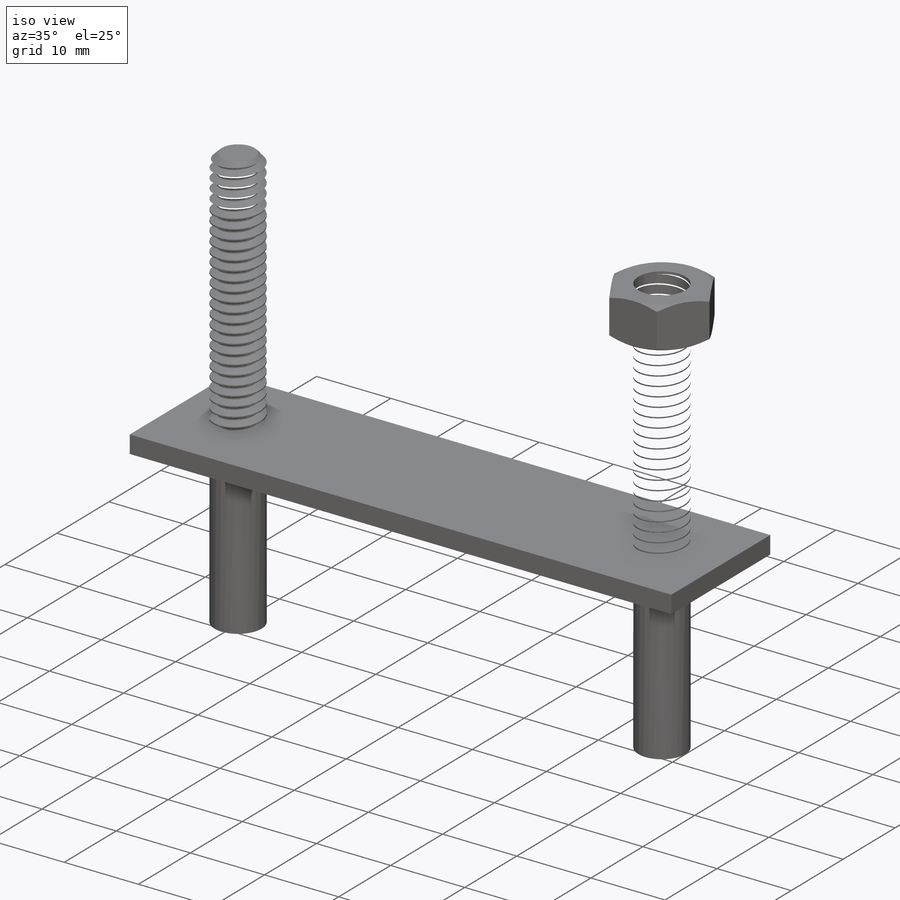
[diagram: iso view]
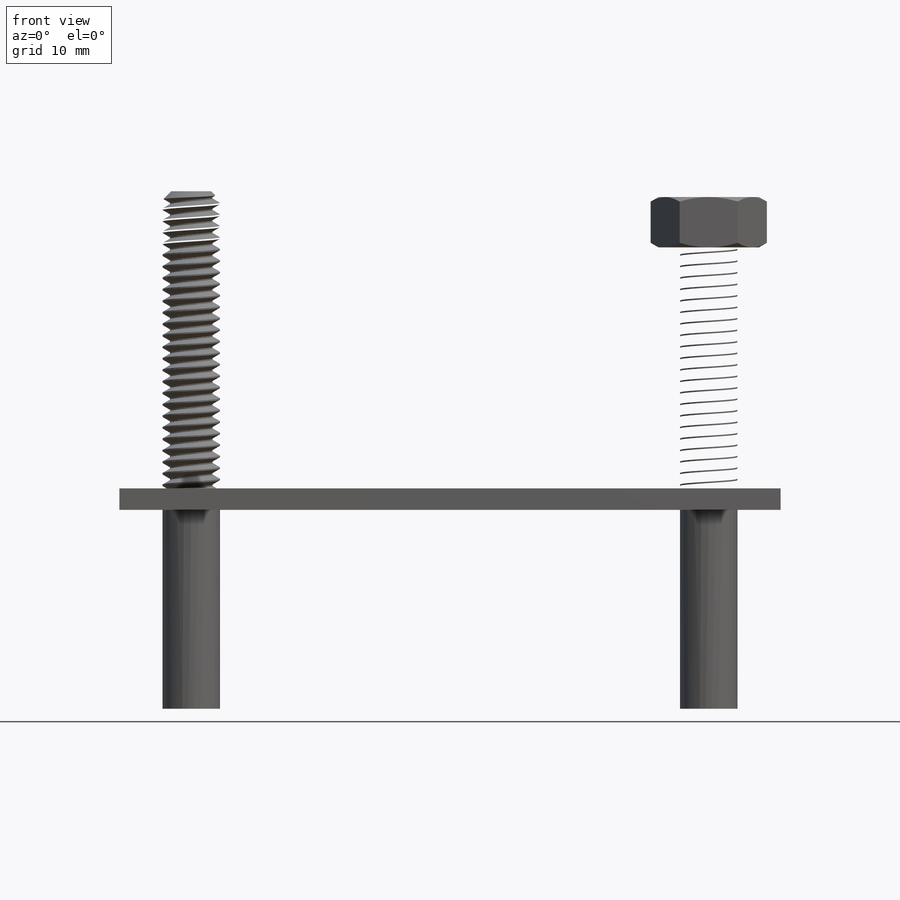
[diagram: front view]
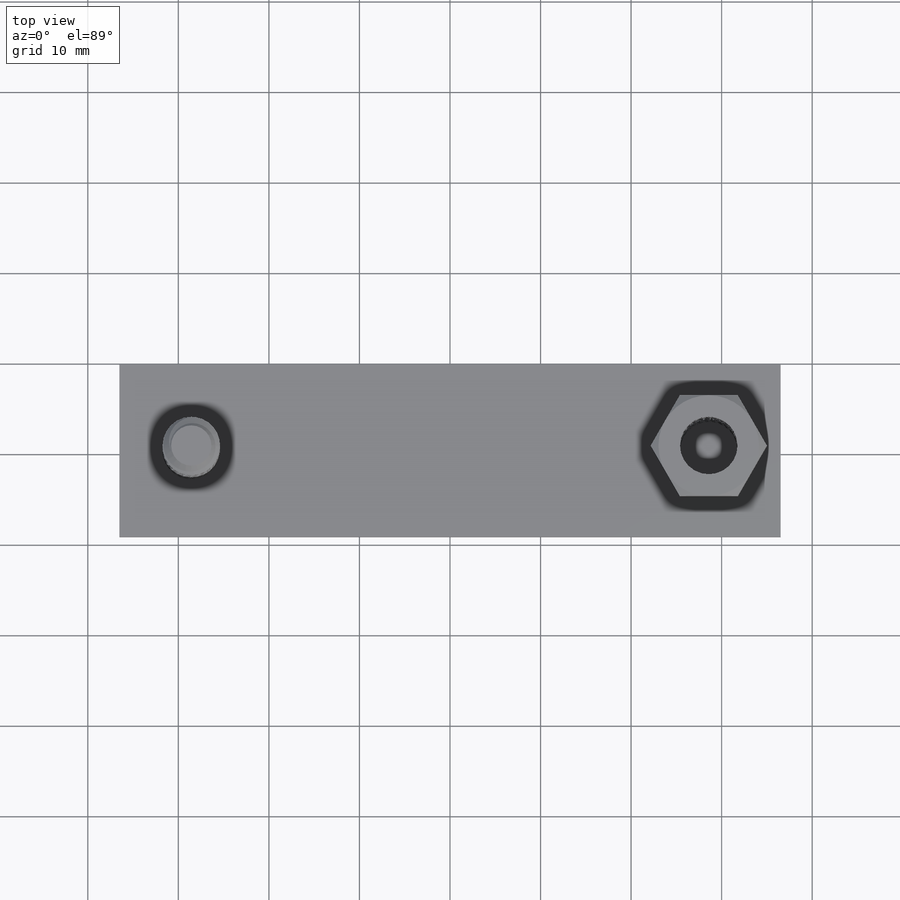
[diagram: top view]
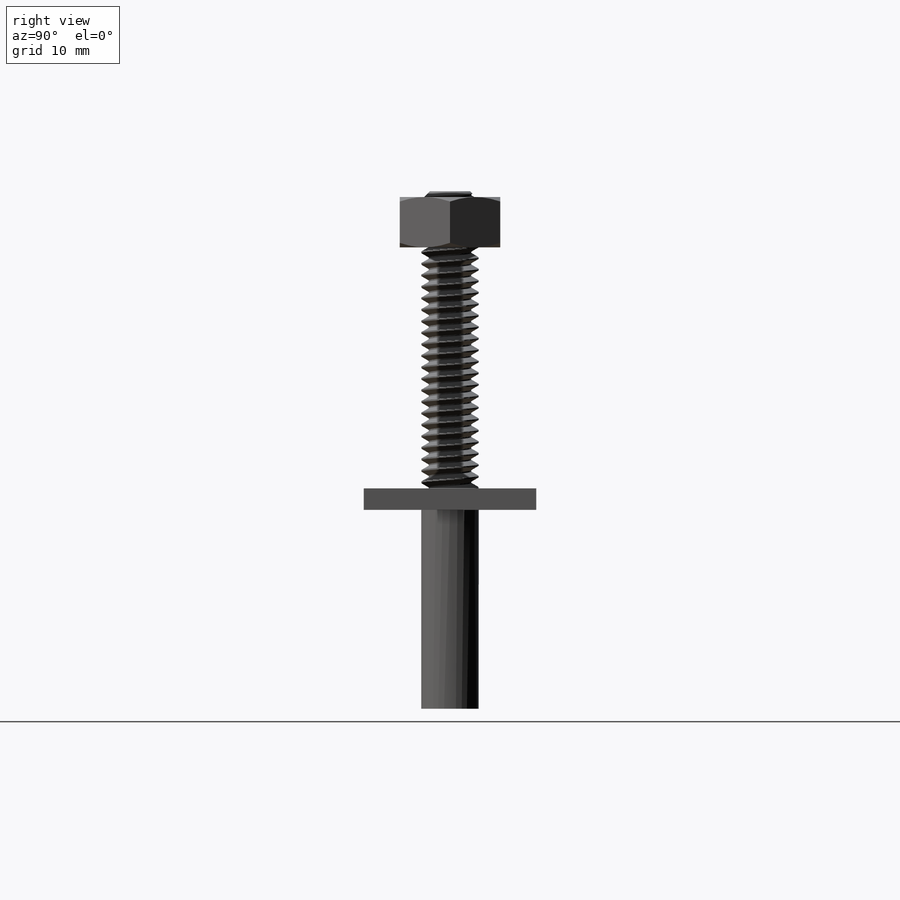
[diagram: right view]
SOLIDWORKS PART (.sldprt)
format: sldprt  version: not decoded by parser v0  size: 1,707,520 bytes
history: native  units: mm
features: sketch x10, move_body x6, plane x3, extrude x3, boolean_combine x3, sweep x2, cut_extrude x2, material x1, helix x1, chamfer x1 (+14 scaffold rows collapsed)
feature tree (46):
  scaffold x14  (default folders/planes/origin — collapsed)
  material  "Material <not specified>"
  sketch  "Sketch1"  dims[Dia=6.35mm Thread Lg=34.925mm D3=98.3742mm Center to Center=57.15mm Height=82.55mm D5=~11.641667mm D6=~11.641667mm]
  plane  "Plane3"
  sketch  "Sketch2"  dims[D1=9.525mm]
  extrude  "Boss-Extrude1"  [1 undecoded]
  sketch  "Sketch6"  dims[D1=0.0mm]
  helix  "Helix/Spiral1"  Pitch=36.195mm
  chamfer  "Chamfer2"  Distance=0.9525mm Angle=45deg
  sketch  "Sketch4"  dims[c1.D1=~1.595927mm c2.D1=~306.785035deg c3.D1=~1.595927mm c4.D1=60.0deg c4.D2=0.635mm c4.D3=~0.15875mm]
  sweep  "Threads"
  plane  "Plane5"
  sketch  "Sketch7"
  sketch  "Sketch8"
  sweep  "Sweep1"
  move_body  "Body-Move/Copy1"
  boolean_combine  "Combine1"
  plane  "Plane6"
  sketch  "Sketch9"  dims[Nut Size=11.1125mm]
  extrude  "Boss-Extrude2"  Depth=5.55625mm Nut Height=5.55625mm
  sketch  "Sketch10"
  cut_extrude  "Cut-Extrude1"  [1 undecoded]
  sketch  "Sketch11"  dims[D1=0.0mm]
  cut_extrude  "Cut-Extrude2"  [1 undecoded]
  move_body  "Body-Move/Copy2"
  move_body  "2nd set nuts"
  sketch  "Sketch12"  dims[Mounting Plate Lg=73.025mm Mounting Plate Wd=19.05mm]
  extrude  "Boss-Extrude3"  Depth=2.38125mm Mounting Plate Thk=2.38125mm
  move_body  "Body-Move/Copy3"
  move_body  "Body-Move/Copy4"
  move_body  "Body-Move/Copy5"
  boolean_combine  "Combine2"
  boolean_combine  "Combine3"
decode coverage: 11 of 28 modeling features carry decoded parameters
note: ~ marks probable driven/reference dimensions
note: 3 parameter values undecoded
summary: no parameter record found for 3 features
note: suppression state not decoded; provenance and decode notes live in map.json
